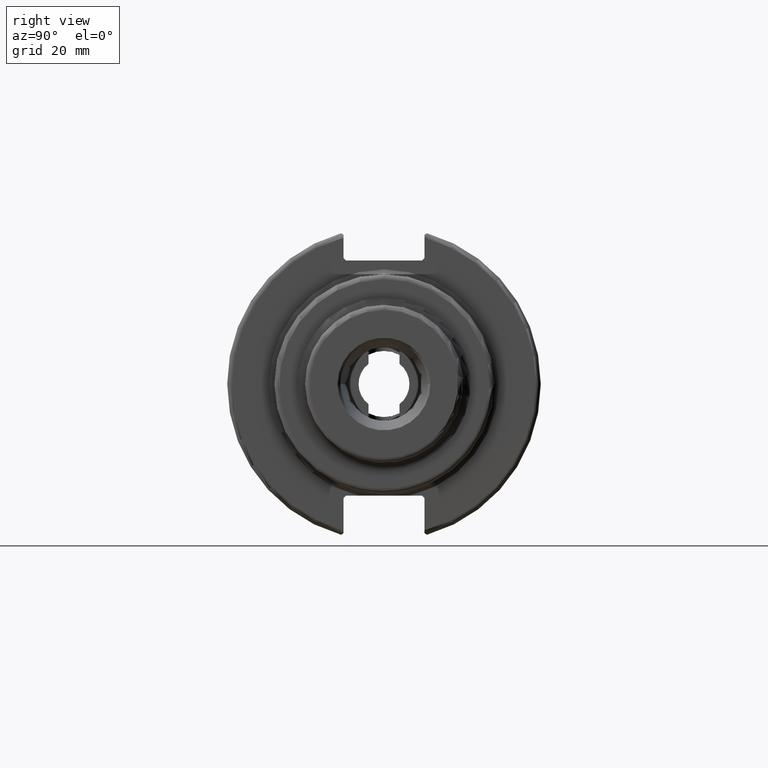
[diagram: clean part render]
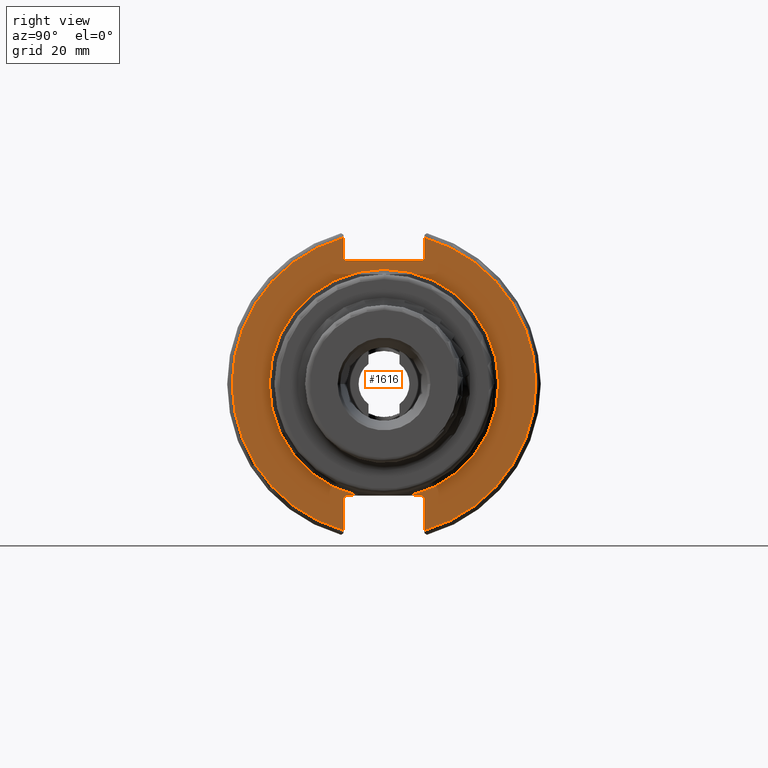
[diagram: same view with one face highlighted and labeled with its STEP entity id]
A machine part, right view. The second image highlights one B-rep face of the part: STEP entity #1616.
In plain terms, the highlighted planar face has unit normal (1, 0, 0).
Its self-contained STEP definition (entity closure, byte-faithful):
#155=PLANE('',#1747);
#224=FACE_OUTER_BOUND('',#319,.T.);
#319=EDGE_LOOP('',(#1300,#1301,#1302,#1303,#1304,#1305,#1306,#1307,#1308,
#1309,#1310,#1311,#1312,#1313));
#414=LINE('',#3121,#520);
#415=LINE('',#3123,#521);
#416=LINE('',#3125,#522);
#417=LINE('',#3129,#523);
#418=LINE('',#3131,#524);
#419=LINE('',#3133,#525);
#420=LINE('',#3135,#526);
#421=LINE('',#3137,#527);
#422=LINE('',#3141,#528);
#423=LINE('',#3143,#529);
#424=LINE('',#3144,#530);
#520=VECTOR('',#1994,10.);
#521=VECTOR('',#1995,10.);
#522=VECTOR('',#1996,10.);
#523=VECTOR('',#1999,10.);
#524=VECTOR('',#2000,10.);
#525=VECTOR('',#2001,10.);
#526=VECTOR('',#2002,10.);
#527=VECTOR('',#2003,10.);
#528=VECTOR('',#2006,10.);
#529=VECTOR('',#2007,10.);
#530=VECTOR('',#2008,10.);
#602=CIRCLE('',#1716,23.225);
#616=CIRCLE('',#1748,30.75);
#617=CIRCLE('',#1749,30.75);
#664=VERTEX_POINT('',#2265);
#665=VERTEX_POINT('',#2272);
#728=VERTEX_POINT('',#3120);
#729=VERTEX_POINT('',#3122);
#730=VERTEX_POINT('',#3124);
#731=VERTEX_POINT('',#3126);
#732=VERTEX_POINT('',#3128);
#733=VERTEX_POINT('',#3130);
#734=VERTEX_POINT('',#3132);
#735=VERTEX_POINT('',#3134);
#736=VERTEX_POINT('',#3136);
#737=VERTEX_POINT('',#3138);
#738=VERTEX_POINT('',#3140);
#739=VERTEX_POINT('',#3142);
#835=EDGE_CURVE('',#664,#665,#602,.T.);
#934=EDGE_CURVE('',#664,#728,#414,.T.);
#935=EDGE_CURVE('',#729,#728,#415,.T.);
#936=EDGE_CURVE('',#729,#730,#416,.T.);
#937=EDGE_CURVE('',#731,#730,#616,.T.);
#938=EDGE_CURVE('',#731,#732,#417,.T.);
#939=EDGE_CURVE('',#733,#732,#418,.T.);
#940=EDGE_CURVE('',#733,#734,#419,.T.);
#941=EDGE_CURVE('',#735,#734,#420,.T.);
#942=EDGE_CURVE('',#735,#736,#421,.T.);
#943=EDGE_CURVE('',#737,#736,#617,.T.);
#944=EDGE_CURVE('',#737,#738,#422,.T.);
#945=EDGE_CURVE('',#739,#738,#423,.T.);
#946=EDGE_CURVE('',#739,#665,#424,.T.);
#1300=ORIENTED_EDGE('',*,*,#835,.F.);
#1301=ORIENTED_EDGE('',*,*,#934,.T.);
#1302=ORIENTED_EDGE('',*,*,#935,.F.);
#1303=ORIENTED_EDGE('',*,*,#936,.T.);
#1304=ORIENTED_EDGE('',*,*,#937,.F.);
#1305=ORIENTED_EDGE('',*,*,#938,.T.);
#1306=ORIENTED_EDGE('',*,*,#939,.F.);
#1307=ORIENTED_EDGE('',*,*,#940,.T.);
#1308=ORIENTED_EDGE('',*,*,#941,.F.);
#1309=ORIENTED_EDGE('',*,*,#942,.T.);
#1310=ORIENTED_EDGE('',*,*,#943,.F.);
#1311=ORIENTED_EDGE('',*,*,#944,.T.);
#1312=ORIENTED_EDGE('',*,*,#945,.F.);
#1313=ORIENTED_EDGE('',*,*,#946,.T.);
#1616=ADVANCED_FACE('',(#224),#155,.T.);
#1716=AXIS2_PLACEMENT_3D('',#2273,#1891,#1892);
#1747=AXIS2_PLACEMENT_3D('',#3119,#1992,#1993);
#1748=AXIS2_PLACEMENT_3D('',#3127,#1997,#1998);
#1749=AXIS2_PLACEMENT_3D('',#3139,#2004,#2005);
#1891=DIRECTION('center_axis',(1.,0.,0.));
#1892=DIRECTION('ref_axis',(0.,-1.,-1.22464679914735E-16));
#1992=DIRECTION('center_axis',(1.,0.,0.));
#1993=DIRECTION('ref_axis',(0.,0.,-1.));
#1994=DIRECTION('',(0.,1.,0.));
#1995=DIRECTION('',(0.,-0.707106781186549,0.707106781186546));
#1996=DIRECTION('',(0.,0.,-1.));
#1997=DIRECTION('center_axis',(-1.,0.,0.));
#1998=DIRECTION('ref_axis',(0.,1.,-6.12323399573677E-17));
#1999=DIRECTION('',(0.,0.,-1.));
#2000=DIRECTION('',(0.,0.707106781186549,0.707106781186546));
#2001=DIRECTION('',(0.,-1.,0.));
#2002=DIRECTION('',(0.,0.70710678118655,-0.707106781186545));
#2003=DIRECTION('',(0.,0.,1.));
#2004=DIRECTION('center_axis',(-1.,0.,0.));
#2005=DIRECTION('ref_axis',(0.,-1.,1.60812264967664E-16));
#2006=DIRECTION('',(0.,0.,1.));
#2007=DIRECTION('',(0.,-0.707106781186549,-0.707106781186546));
#2008=DIRECTION('',(0.,1.,0.));
#2265=CARTESIAN_POINT('',(19.05,5.35169365715191,-22.6));
#2272=CARTESIAN_POINT('',(19.05,-5.35169365715191,-22.6));
#2273=CARTESIAN_POINT('Origin',(19.05,0.,0.));
#3119=CARTESIAN_POINT('Origin',(19.05,0.,0.));
#3120=CARTESIAN_POINT('',(19.05,7.69,-22.6));
#3121=CARTESIAN_POINT('',(19.05,-2.77555756156289E-16,-22.6));
#3122=CARTESIAN_POINT('',(19.05,8.19,-23.1));
#3123=CARTESIAN_POINT('',(19.05,0.242499999999989,-15.1525));
#3124=CARTESIAN_POINT('',(19.05,8.19,-29.6392712461019));
#3125=CARTESIAN_POINT('',(19.05,8.19,-11.3));
#3126=CARTESIAN_POINT('',(19.05,8.19,29.6392712461019));
#3127=CARTESIAN_POINT('Origin',(19.05,0.,0.));
#3128=CARTESIAN_POINT('',(19.05,8.19,25.5));
#3129=CARTESIAN_POINT('',(19.05,8.19,12.5));
#3130=CARTESIAN_POINT('',(19.05,7.69,25.));
#3131=CARTESIAN_POINT('',(19.05,-0.35750000000001,16.9525));
#3132=CARTESIAN_POINT('',(19.05,-7.69,25.));
#3133=CARTESIAN_POINT('',(19.05,0.,25.));
#3134=CARTESIAN_POINT('',(19.05,-8.19,25.5));
#3135=CARTESIAN_POINT('',(19.05,0.357500000000014,16.9525));
#3136=CARTESIAN_POINT('',(19.05,-8.19,29.6392712461019));
#3137=CARTESIAN_POINT('',(19.05,-8.19,12.5));
#3138=CARTESIAN_POINT('',(19.05,-8.19,-29.6392712461019));
#3139=CARTESIAN_POINT('Origin',(19.05,0.,0.));
#3140=CARTESIAN_POINT('',(19.05,-8.19,-23.1));
#3141=CARTESIAN_POINT('',(19.05,-8.19,-11.3));
#3142=CARTESIAN_POINT('',(19.05,-7.69,-22.6));
#3143=CARTESIAN_POINT('',(19.05,-0.242499999999991,-15.1525));
#3144=CARTESIAN_POINT('',(19.05,-2.77555756156289E-16,-22.6));